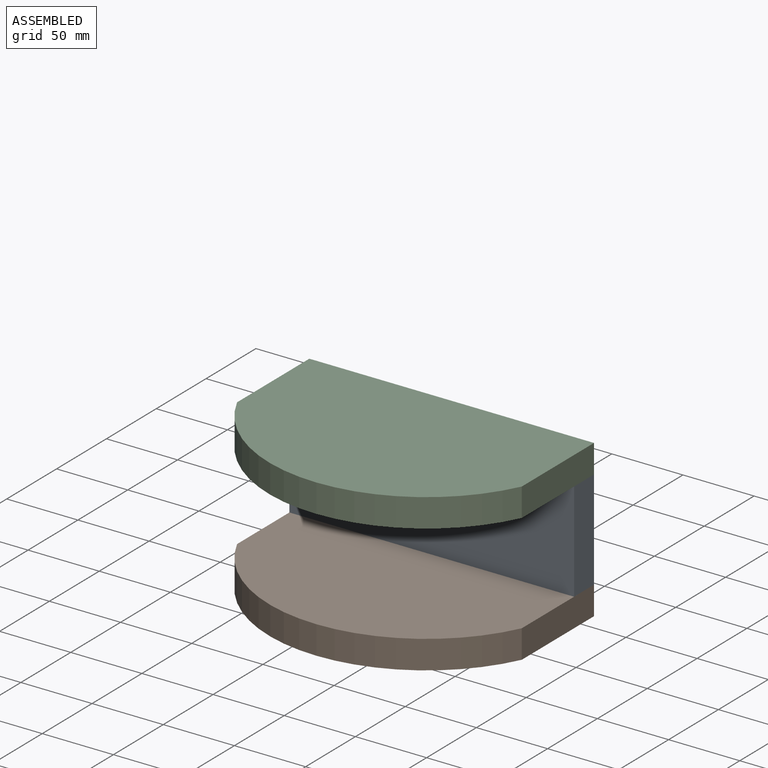
[diagram: assembled view]
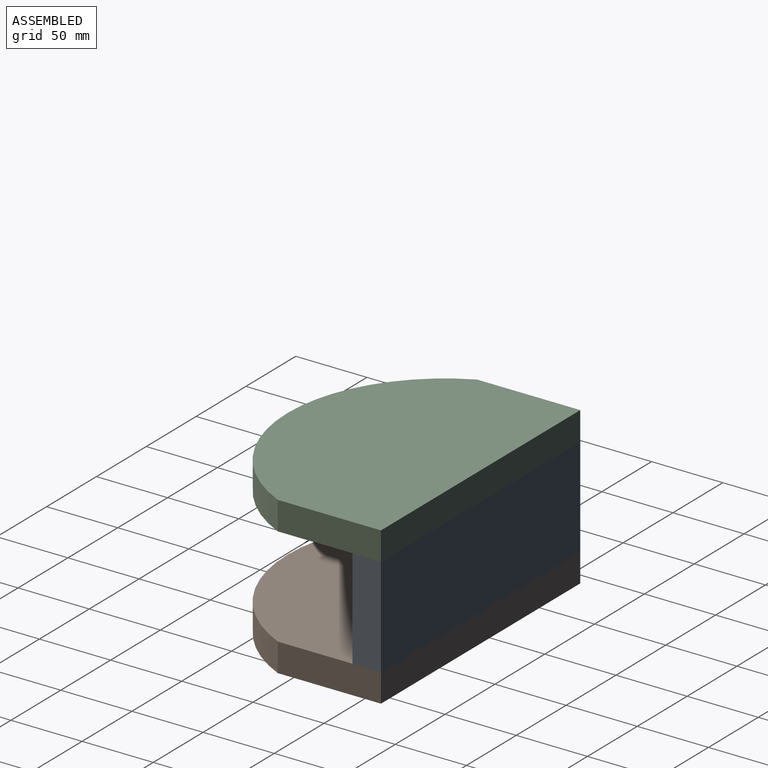
[diagram: assembled view, second angle]
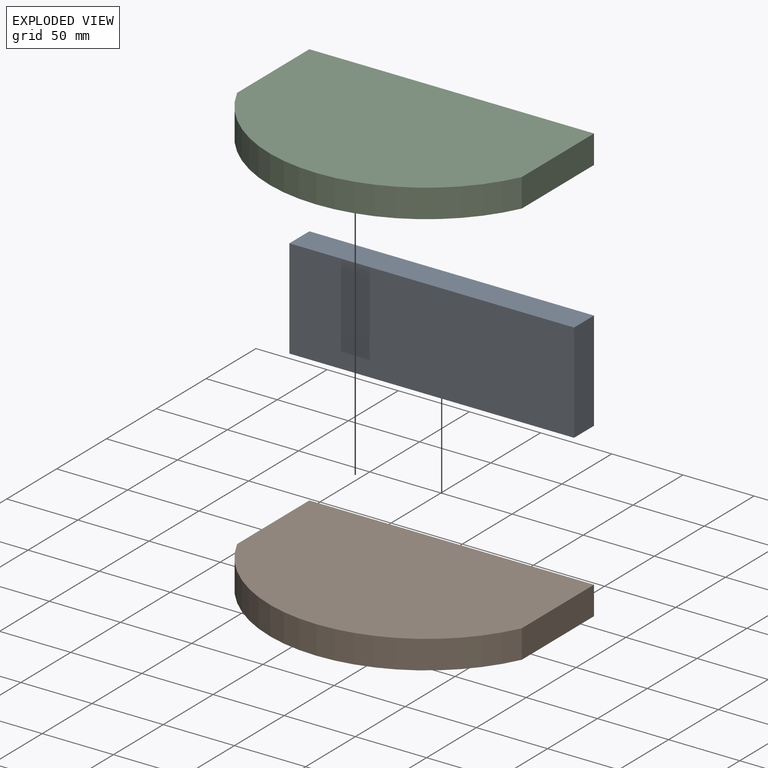
[diagram: exploded view]
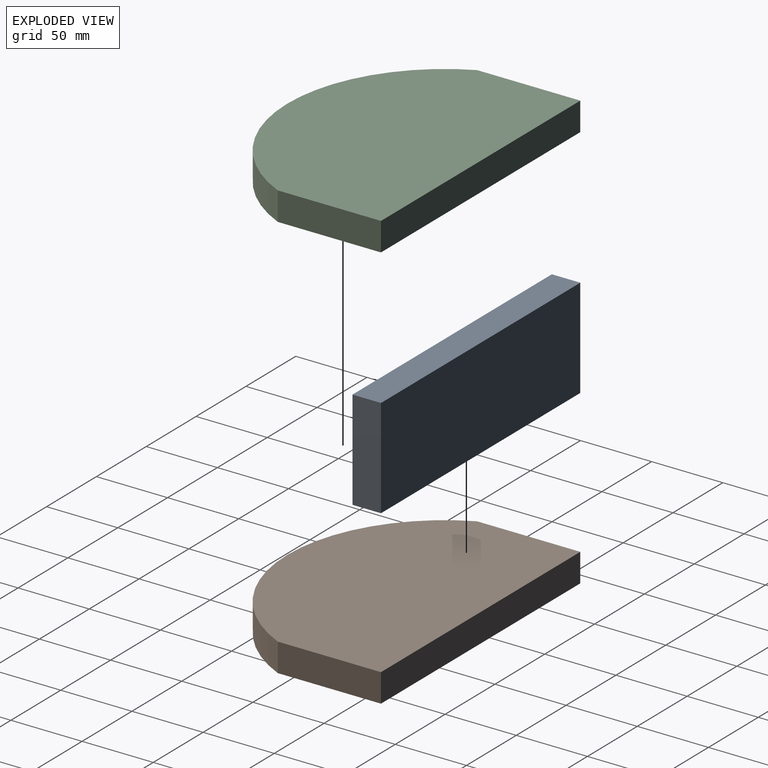
[diagram: exploded view, second angle]
ASSEMBLY  parts=3 mates=2
PART A: 6 faces, bbox 200x20x70 mm
  f0: plane 200x20mm, normal (0,0,1), area 4000mm2, adj f1,f3,f4,f5
  f1: plane 70x20mm, normal (-1,0,0), area 1400mm2, adj f0,f2,f4,f5
  f2: plane 200x20mm, normal (0,0,-1), area 4000mm2, adj f1,f3,f4,f5
  f3: plane 70x20mm, normal (1,0,0), area 1400mm2, adj f0,f2,f4,f5
  f4: plane 200x70mm, normal (0,-1,0), area 14000mm2, adj f0,f1,f2,f3
  f5: plane 200x70mm, normal (0,1,0), area 14000mm2, adj f0,f1,f2,f3
PART B: 6 faces, bbox 200x135.8x20 mm
  f0: plane 200x20mm, normal (0,1,0), area 4000mm2, adj f1,f3,f4,f5
  f1: plane 72.5x20mm, normal (-1,0,0), area 1450mm2, adj f0,f2,f4,f5
  f2: cylinder r=110.65mm len=200mm, axis (0,0,-1), area 4994.5mm2, adj f1,f3,f4,f5
  f3: plane 72.5x20mm, normal (1,0,0), area 1450mm2, adj f0,f2,f4,f5
  f4: plane 200x135.78mm, normal (0,0,1), area 23579.6mm2, adj f0,f1,f2,f3
  f5: plane 200x135.78mm, normal (0,0,-1), area 23579.6mm2, adj f0,f1,f2,f3
PART C: same geometry as B
PLACE A t=(-175.23,-67.24,38.95)mm
PLACE B t=(-175.56,-188.38,-21.26)mm
PLACE C t=(-175.56,-188.38,68.74)mm
MATE fastened B.f4 <-> A.f2  axis (0,0,1) through (-210.33,-67.24,-1.26)mm
MATE fastened A.f0 <-> C.f5  axis (0,0,1) through (-210.33,-67.24,68.74)mm
